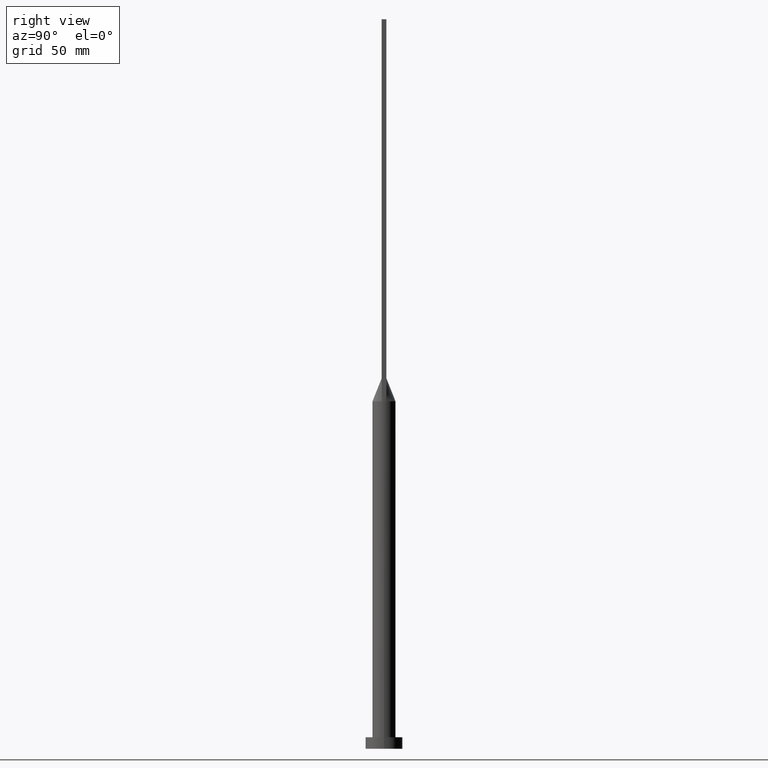
[diagram: clean part render]
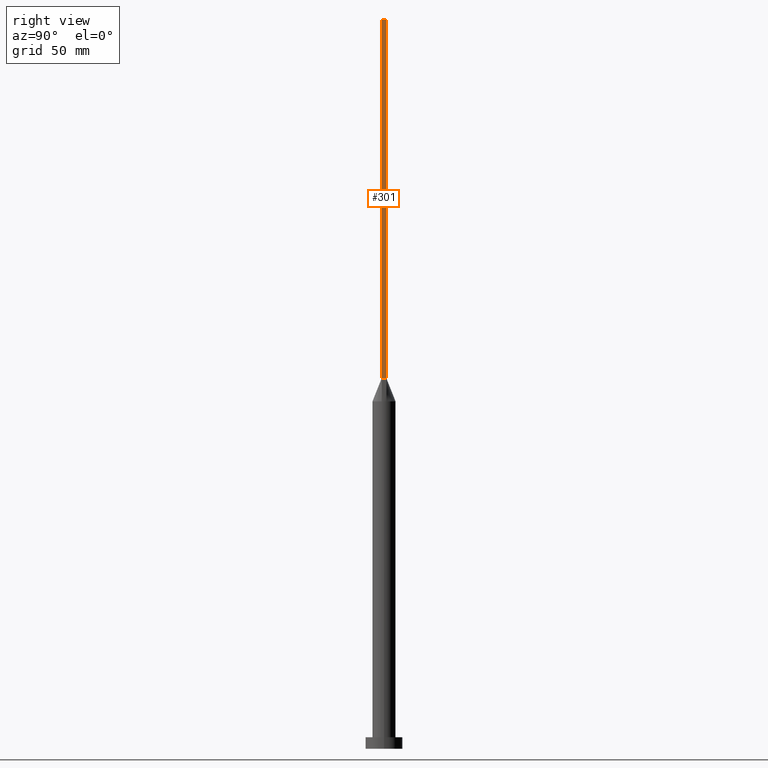
[diagram: same view with one face highlighted and labeled with its STEP entity id]
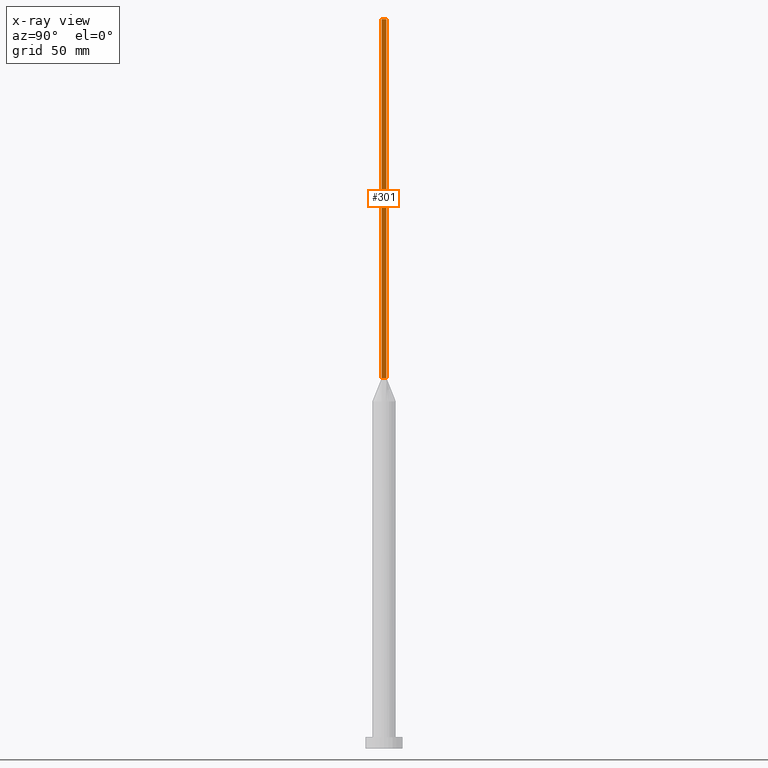
[diagram: x-ray of the same camera — body ghosted, the highlighted face saturated]
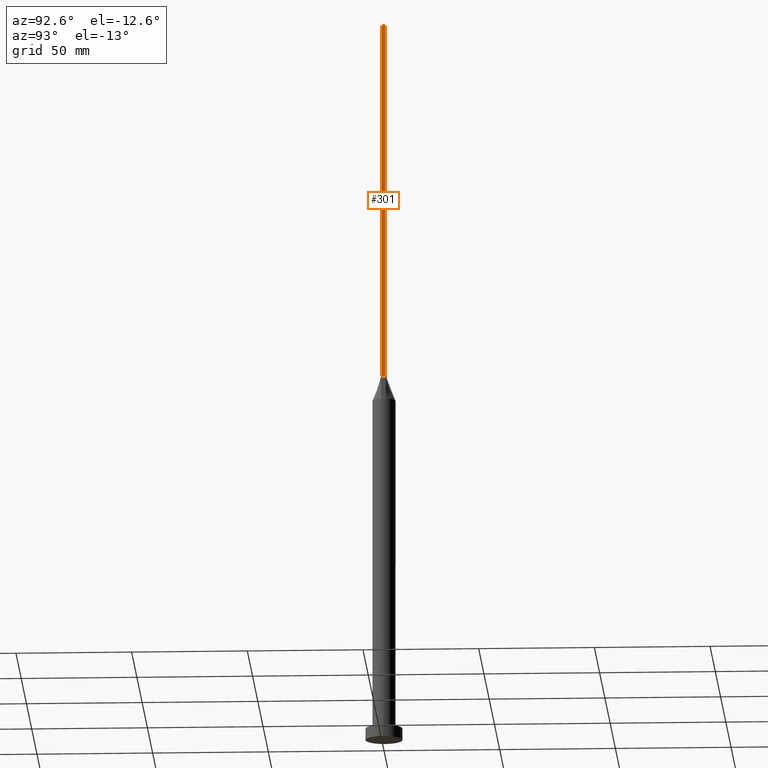
[diagram: same view with one face highlighted and labeled with its STEP entity id]
A machine part, right view. The second image highlights one B-rep face of the part: STEP entity #301.
The next image is the same camera in x-ray: the body ghosted, the highlighted face saturated — about 0% of this face is hidden behind the body in this view.
A second angle (auxiliary view) of the same face is appended — the face is thin or edge-on in the first view.
In plain terms, the highlighted planar face has unit normal (-1, 0, 0).
Its self-contained STEP definition (entity closure, byte-faithful):
#6 = DIRECTION ( 'NONE',  ( 0.000000000000000000, 0.000000000000000000, 1.000000000000000000 ) ) ;
#19 = CARTESIAN_POINT ( 'NONE',  ( 4.750000000000000000, -0.9999999999999997780, 315.0000000000000000 ) ) ;
#47 = DIRECTION ( 'NONE',  ( -1.000000000000000000, 0.000000000000000000, 0.000000000000000000 ) ) ;
#80 = VERTEX_POINT ( 'NONE', #571 ) ;
#104 = DIRECTION ( 'NONE',  ( -0.000000000000000000, -0.000000000000000000, -1.000000000000000000 ) ) ;
#123 = DIRECTION ( 'NONE',  ( -0.000000000000000000, -0.000000000000000000, -1.000000000000000000 ) ) ;
#153 = EDGE_CURVE ( 'NONE', #80, #396, #256, .T. ) ;
#167 = CARTESIAN_POINT ( 'NONE',  ( 4.750000000000000000, -0.9999999999999997780, 315.0000000000000000 ) ) ;
#173 = VECTOR ( 'NONE', #425, 1000.000000000000000 ) ;
#177 = LINE ( 'NONE', #167, #494 ) ;
#190 = CARTESIAN_POINT ( 'NONE',  ( 4.750000000000000000, 1.000000000000000000, 160.0000000000000000 ) ) ;
#198 = DIRECTION ( 'NONE',  ( -0.000000000000000000, 1.000000000000000000, -0.000000000000000000 ) ) ;
#232 = ORIENTED_EDGE ( 'NONE', *, *, #451, .T. ) ;
#256 = LINE ( 'NONE', #19, #173 ) ;
#271 = EDGE_LOOP ( 'NONE', ( #232, #596, #329, #366 ) ) ;
#277 = EDGE_CURVE ( 'NONE', #80, #516, #177, .T. ) ;
#280 = FACE_OUTER_BOUND ( 'NONE', #271, .T. ) ;
#301 = ADVANCED_FACE ( 'NONE', ( #280 ), #513, .F. ) ;
#322 = VECTOR ( 'NONE', #104, 1000.000000000000000 ) ;
#329 = ORIENTED_EDGE ( 'NONE', *, *, #153, .F. ) ;
#363 = CARTESIAN_POINT ( 'NONE',  ( 4.750000000000000000, 1.000000000000000000, 315.0000000000000000 ) ) ;
#366 = ORIENTED_EDGE ( 'NONE', *, *, #277, .T. ) ;
#369 = EDGE_CURVE ( 'NONE', #396, #479, #467, .T. ) ;
#372 = CARTESIAN_POINT ( 'NONE',  ( 4.750000000000000000, 1.000000000000000000, 160.0000000000000000 ) ) ;
#396 = VERTEX_POINT ( 'NONE', #363 ) ;
#419 = AXIS2_PLACEMENT_3D ( 'NONE', #460, #47, #6 ) ;
#425 = DIRECTION ( 'NONE',  ( 0.000000000000000000, 1.000000000000000000, 0.000000000000000000 ) ) ;
#451 = EDGE_CURVE ( 'NONE', #516, #479, #518, .T. ) ;
#460 = CARTESIAN_POINT ( 'NONE',  ( 4.750000000000000000, -0.9999999999999997780, 315.0000000000000000 ) ) ;
#467 = LINE ( 'NONE', #520, #322 ) ;
#479 = VERTEX_POINT ( 'NONE', #372 ) ;
#494 = VECTOR ( 'NONE', #123, 1000.000000000000000 ) ;
#513 = PLANE ( 'NONE',  #419 ) ;
#516 = VERTEX_POINT ( 'NONE', #535 ) ;
#518 = LINE ( 'NONE', #190, #573 ) ;
#520 = CARTESIAN_POINT ( 'NONE',  ( 4.750000000000000000, 1.000000000000000000, 315.0000000000000000 ) ) ;
#535 = CARTESIAN_POINT ( 'NONE',  ( 4.750000000000000000, -0.9999999999999997780, 160.0000000000000000 ) ) ;
#571 = CARTESIAN_POINT ( 'NONE',  ( 4.750000000000000000, -0.9999999999999997780, 315.0000000000000000 ) ) ;
#573 = VECTOR ( 'NONE', #198, 1000.000000000000000 ) ;
#596 = ORIENTED_EDGE ( 'NONE', *, *, #369, .F. ) ;